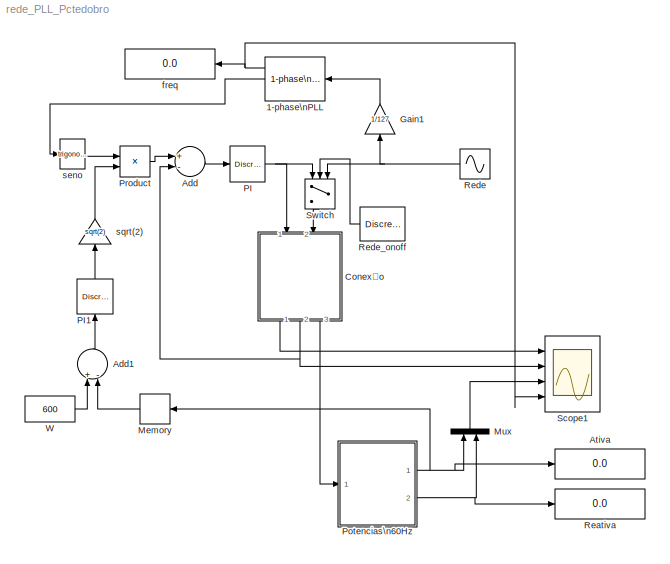
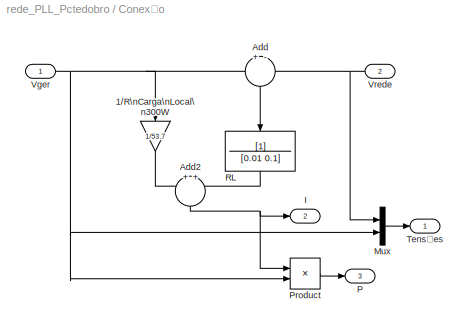
MODEL rede_PLL_Pctedobro
KIND model
BLOCK [Reference] 1-phase\nPLL  REF=powerlib_extras/Control \nBlocks/1-phase\nPLL
  AGC = off
  DialogController = POWERSYS.PowerSysDialog
  FunctionWithSeparateData = off
  ParK = [ 180 3200 1 ]
  Par_Init = [0 60]
  Ports = [1, 3]
  RTWMemSecDataConstants = Inherit from model
  RTWMemSecDataInternal = Inherit from model
  RTWMemSecDataParameters = Inherit from model
  RTWMemSecFuncExecute = Inherit from model
  RTWMemSecFuncInitTerm = Inherit from model
  SID = 41
  ShowPortLabels = FromPortIcon
  SourceBlock = powerlib_extras/Control \nBlocks/1-phase\nPLL
  SourceType = 1-phase PLL
  SystemSampleTime = -1
BLOCK [Sum] Add
  InputSameDT = off
  Inputs = +-
  OutDataType = sfix(16)
  OutDataTypeMode = Inherit via internal rule
  OutDataTypeStr = Inherit: Inherit via internal rule
  OutScaling = 2^-10
  Ports = [2, 1]
  SID = 2
  SaturateOnIntegerOverflow = off
BLOCK [Sum] Add1
  InputSameDT = off
  Inputs = +-
  OutDataType = sfix(16)
  OutDataTypeMode = Inherit via internal rule
  OutDataTypeStr = Inherit: Inherit via internal rule
  OutScaling = 2^-10
  Ports = [2, 1]
  SID = 3
  SaturateOnIntegerOverflow = off
BLOCK [Display] Ativa
  Decimation = 1
  Lockdown = off
  Ports = [1]
  SID = 4
BLOCK [SubSystem] Conexão
  FunctionWithSeparateData = off
  MaskHideContents = off
  MinAlgLoopOccurrences = off
  Opaque = off
  Ports = [2, 3]
  PropExecContextOutsideSubsystem = off
  RTWSystemCode = Auto
  RequestExecContextInheritance = off
  SID = 5
BLOCK [Gain] Conexão/1//R\nCarga\nLocal\n300W
  Gain = 1/53.7
  OutDataType = sfix(16)
  OutDataTypeMode = Inherit via internal rule
  OutDataTypeStr = Inherit: Inherit via internal rule
  OutScaling = 2^0
  ParamDataTypeStr = Inherit: Inherit via internal rule
  ParameterDataType = sfix(16)
  ParameterDataTypeMode = Inherit via internal rule
  ParameterScaling = 2^0
  SID = 8
  SaturateOnIntegerOverflow = off
BLOCK [Sum] Conexão/Add
  IconShape = round
  InputSameDT = off
  Inputs = +-
  OutDataType = sfix(16)
  OutDataTypeMode = Inherit via internal rule
  OutDataTypeStr = Inherit: Inherit via internal rule
  OutScaling = 2^-10
  Ports = [2, 1]
  SID = 9
  SaturateOnIntegerOverflow = off
BLOCK [Sum] Conexão/Add2
  IconShape = round
  InputSameDT = off
  Inputs = 2
  OutDataType = sfix(16)
  OutDataTypeMode = Inherit via internal rule
  OutDataTypeStr = Inherit: Inherit via internal rule
  OutScaling = 2^-10
  Ports = [2, 1]
  SID = 10
  SaturateOnIntegerOverflow = off
BLOCK [Outport] Conexão/I
  IconDisplay = Port number
  OutDataType = sfix(16)
  OutScaling = 2^0
  Port = 2
  SID = 15
BLOCK [Mux] Conexão/Mux
  DisplayOption = bar
  Inputs = 2
  Ports = [2, 1]
  SID = 11
BLOCK [Outport] Conexão/P
  IconDisplay = Port number
  OutDataType = sfix(16)
  OutScaling = 2^0
  Port = 3
  SID = 16
BLOCK [Product] Conexão/Product
  InputSameDT = off
  OutDataType = sfix(16)
  OutDataTypeMode = Inherit via internal rule
  OutDataTypeStr = Inherit: Inherit via internal rule
  OutScaling = 2^0
  Ports = [2, 1]
  SID = 12
  SaturateOnIntegerOverflow = off
BLOCK [TransferFcn] Conexão/RL
  Denominator = [0.01 0.1]
  SID = 13
BLOCK [Outport] Conexão/Tensões
  IconDisplay = Port number
  OutDataType = sfix(16)
  OutScaling = 2^0
  SID = 14
BLOCK [Inport] Conexão/Vger
  IconDisplay = Port number
  OutDataType = sfix(16)
  OutScaling = 2^0
  SID = 6
BLOCK [Inport] Conexão/Vrede
  IconDisplay = Port number
  OutDataType = sfix(16)
  OutScaling = 2^0
  Port = 2
  SID = 7
BLOCK [Gain] Gain1
  Gain = 1/127
  OutDataType = sfix(16)
  OutDataTypeMode = Inherit via internal rule
  OutDataTypeStr = Inherit: Inherit via internal rule
  OutScaling = 2^0
  ParamDataTypeStr = Inherit: Inherit via internal rule
  ParameterDataType = sfix(16)
  ParameterDataTypeMode = Inherit via internal rule
  ParameterScaling = 2^0
  SID = 17
  SaturateOnIntegerOverflow = off
BLOCK [Memory] Memory
  SID = 18
BLOCK [Mux] Mux
  DisplayOption = bar
  Inputs = 2
  Ports = [2, 1]
  SID = 19
BLOCK [Reference] PI  REF=powerlib_extras/Discrete \nControl Blocks/Discrete\nPI Controller
  DialogController = POWERSYS.PowerSysDialog
  FunctionWithSeparateData = off
  Init = 0
  Ki = 20
  Kp = 10
  Par_Limits = [1e3 -1e3]
  Ports = [1, 1]
  RTWMemSecDataConstants = Inherit from model
  RTWMemSecDataInternal = Inherit from model
  RTWMemSecDataParameters = Inherit from model
  RTWMemSecFuncExecute = Inherit from model
  RTWMemSecFuncInitTerm = Inherit from model
  SID = 42
  ShowPortLabels = FromPortIcon
  SourceBlock = powerlib_extras/Discrete \nControl Blocks/Discrete\nPI Controller
  SourceType = Discrete PI Controller
  SystemSampleTime = -1
  Ts = 1e-3
BLOCK [Reference] PI1  REF=powerlib_extras/Discrete \nControl Blocks/Discrete\nPI Controller
  DialogController = POWERSYS.PowerSysDialog
  FunctionWithSeparateData = off
  Init = 10
  Ki = 0.05
  Kp = 0.01
  Par_Limits = [40 0]
  Ports = [1, 1]
  RTWMemSecDataConstants = Inherit from model
  RTWMemSecDataInternal = Inherit from model
  RTWMemSecDataParameters = Inherit from model
  RTWMemSecFuncExecute = Inherit from model
  RTWMemSecFuncInitTerm = Inherit from model
  SID = 21
  ShowPortLabels = FromPortIcon
  SourceBlock = powerlib_extras/Discrete \nControl Blocks/Discrete\nPI Controller
  SourceType = Discrete PI Controller
  SystemSampleTime = -1
  Ts = 1e-3
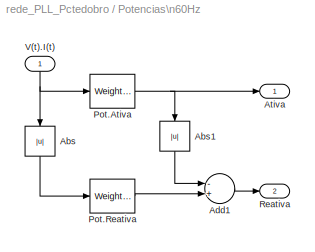
BLOCK [SubSystem] Potencias\n60Hz
  FunctionWithSeparateData = off
  MaskHideContents = off
  MinAlgLoopOccurrences = off
  Opaque = off
  Ports = [1, 2]
  PropExecContextOutsideSubsystem = off
  RTWSystemCode = Auto
  RequestExecContextInheritance = off
  SID = 22
BLOCK [Abs] Potencias\n60Hz/Abs
  SID = 24
  SaturateOnIntegerOverflow = off
BLOCK [Abs] Potencias\n60Hz/Abs1
  SID = 25
  SaturateOnIntegerOverflow = off
BLOCK [Sum] Potencias\n60Hz/Add1
  InputSameDT = off
  Inputs = -+
  OutDataType = sfix(16)
  OutDataTypeMode = Inherit via internal rule
  OutDataTypeStr = Inherit: Inherit via internal rule
  OutScaling = 2^-10
  Ports = [2, 1]
  SID = 26
  SaturateOnIntegerOverflow = off
BLOCK [Outport] Potencias\n60Hz/Ativa
  IconDisplay = Port number
  OutDataType = sfix(16)
  OutScaling = 2^0
  SID = 29
BLOCK [Reference] Potencias\n60Hz/Pot.Ativa  REF=simulink_need_slupdate/Weighted\nMoving Average
  DoSatur = off
  GainDataType = sfix( 16 )
  GainDataTypeScalingMode = Inherit via internal rule
  GainDataTypeStr = Inherit: Inherit via internal rule
  GainScaling = 2^-10
  LockScale = off
  MatRadixGroup = Best Precision: Matrix-wise
  OutDataType = sfix(16)
  OutDataTypeStr = Inherit: Inherit via internal rule
  OutScaling = 2^-10
  OutputDataTypeScalingMode = Inherit via internal rule
  Ports = [1, 1]
  RndMeth = Floor
  SID = 27
  SourceBlock = simulink_need_slupdate/Weighted\nMoving Average
  SourceType = Weighted Moving Average
  mgainval = [ones(1,16)]./16
  samptime = -1
  vinit = 0.0
BLOCK [Reference] Potencias\n60Hz/Pot.Reativa  REF=simulink_need_slupdate/Weighted\nMoving Average
  DoSatur = off
  GainDataType = sfix( 16 )
  GainDataTypeScalingMode = Inherit via internal rule
  GainDataTypeStr = Inherit: Inherit via internal rule
  GainScaling = 2^-10
  LockScale = off
  MatRadixGroup = Best Precision: Matrix-wise
  OutDataType = sfix(16)
  OutDataTypeStr = Inherit: Inherit via internal rule
  OutScaling = 2^-10
  OutputDataTypeScalingMode = Inherit via internal rule
  Ports = [1, 1]
  RndMeth = Floor
  SID = 28
  SourceBlock = simulink_need_slupdate/Weighted\nMoving Average
  SourceType = Weighted Moving Average
  mgainval = [ones(1,16)]./16
  samptime = -1
  vinit = 0.0
BLOCK [Outport] Potencias\n60Hz/Reativa
  IconDisplay = Port number
  OutDataType = sfix(16)
  OutScaling = 2^0
  Port = 2
  SID = 30
BLOCK [Inport] Potencias\n60Hz/V(t).I(t)
  IconDisplay = Port number
  OutDataType = sfix(16)
  OutScaling = 2^0
  SID = 23
BLOCK [Product] Product
  InputSameDT = off
  OutDataType = sfix(16)
  OutDataTypeMode = Inherit via internal rule
  OutDataTypeStr = Inherit: Inherit via internal rule
  OutScaling = 2^0
  Ports = [2, 1]
  SID = 31
  SaturateOnIntegerOverflow = off
BLOCK [Display] Reativa
  Decimation = 1
  Lockdown = off
  Ports = [1]
  SID = 32
BLOCK [Sin] Rede
  Amplitude = 127*sqrt(2)
  Bias = 0
  Frequency = 60*2*pi
  Offset = 0
  Phase = 0
  Ports = [0, 1]
  SID = 33
  SampleTime = 0
  Samples = 10
BLOCK [DiscretePulseGenerator] Rede_onoff
  Amplitude = 2
  Period = 2
  PhaseDelay = -1
  Ports = [0, 1]
  PulseType = Time based
  PulseWidth = 50
  SID = 34
  SampleTime = 1
BLOCK [Scope] Scope1
  DataFormat = StructureWithTime
  Floating = off
  NumInputPorts = 4
  Ports = [4]
  SID = 35
  SampleTime = 0
  SaveName = dados
  SaveToWorkspace = on
  TimeRange = 3
  YMax = 200~20~4000~5
  YMin = -200~-40~-2000~-5
  ZoomMode = xonly
BLOCK [Switch] Switch
  InputSameDT = off
  SID = 36
  SaturateOnIntegerOverflow = off
  Threshold = 1
BLOCK [Constant] W
  OutDataType = sfix(16)
  OutScaling = 2^0
  SID = 37
  Value = 600
BLOCK [Display] freq
  Decimation = 1
  Lockdown = off
  Ports = [1]
  SID = 38
BLOCK [Trigonometry] seno
  Ports = [1, 1]
  SID = 39
BLOCK [Gain] sqrt(2)
  Gain = sqrt(2)
  OutDataType = sfix(16)
  OutDataTypeMode = Inherit via internal rule
  OutDataTypeStr = Inherit: Inherit via internal rule
  OutScaling = 2^0
  ParamDataTypeStr = Inherit: Inherit via internal rule
  ParameterDataType = sfix(16)
  ParameterDataTypeMode = Inherit via internal rule
  ParameterScaling = 2^0
  SID = 40
  SaturateOnIntegerOverflow = off
NET 1-phase\nPLL:1 -> Scope1:4, freq:1
LINE 1-phase\nPLL:2 -> seno:1
LINE Add1:1 -> PI1:1
LINE Add:1 -> PI:1
LINE Conexão/1//R\nCarga\nLocal\n300W:1 -> Conexão/Add2:1
NET Conexão/Add2:1 -> Conexão/I:1, Conexão/Product:1
LINE Conexão/Add:1 -> Conexão/RL:1
LINE Conexão/Mux:1 -> Conexão/Tensões:1
LINE Conexão/Product:1 -> Conexão/P:1
LINE Conexão/RL:1 -> Conexão/Add2:2
NET Conexão/Vger:1 -> Conexão/1//R\nCarga\nLocal\n300W:1, Conexão/Add:1, Conexão/Mux:2, Conexão/Product:2
NET Conexão/Vrede:1 -> Conexão/Add:2, Conexão/Mux:1
LINE Conexão:1 -> Scope1:1
NET Conexão:2 -> Add:2, Scope1:2
LINE Conexão:3 -> Potencias\n60Hz:1
LINE Gain1:1 -> 1-phase\nPLL:1
LINE Memory:1 -> Add1:2
LINE Mux:1 -> Scope1:3
LINE PI1:1 -> sqrt(2):1
NET PI:1 -> Conexão:1, Switch:1
LINE Potencias\n60Hz/Abs1:1 -> Potencias\n60Hz/Add1:1
LINE Potencias\n60Hz/Abs:1 -> Potencias\n60Hz/Pot.Reativa:1
LINE Potencias\n60Hz/Add1:1 -> Potencias\n60Hz/Reativa:1
NET Potencias\n60Hz/Pot.Ativa:1 -> Potencias\n60Hz/Abs1:1, Potencias\n60Hz/Ativa:1
LINE Potencias\n60Hz/Pot.Reativa:1 -> Potencias\n60Hz/Add1:2
NET Potencias\n60Hz/V(t).I(t):1 -> Potencias\n60Hz/Abs:1, Potencias\n60Hz/Pot.Ativa:1
NET Potencias\n60Hz:1 -> Ativa:1, Memory:1, Mux:1
NET Potencias\n60Hz:2 -> Mux:2, Reativa:1
LINE Product:1 -> Add:1
NET Rede:1 -> Gain1:1, Switch:3
LINE Rede_onoff:1 -> Switch:2
LINE Switch:1 -> Conexão:2
LINE W:1 -> Add1:1
LINE seno:1 -> Product:1
LINE sqrt(2):1 -> Product:2
note: NET lines group one-source signal fan-out (src -> all destinations, sorted); 1:1 wires keep LINE
